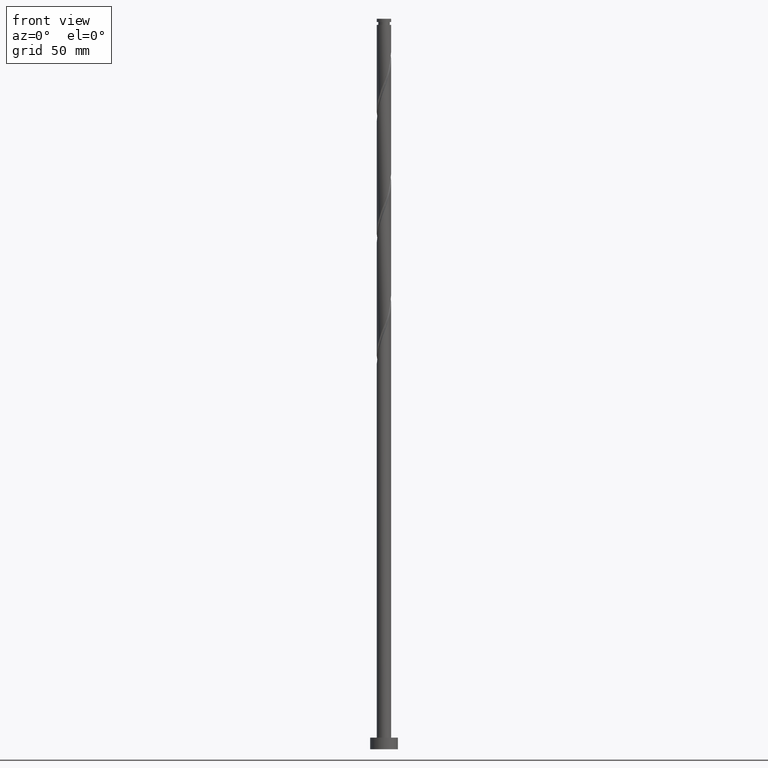
[diagram: clean part render]
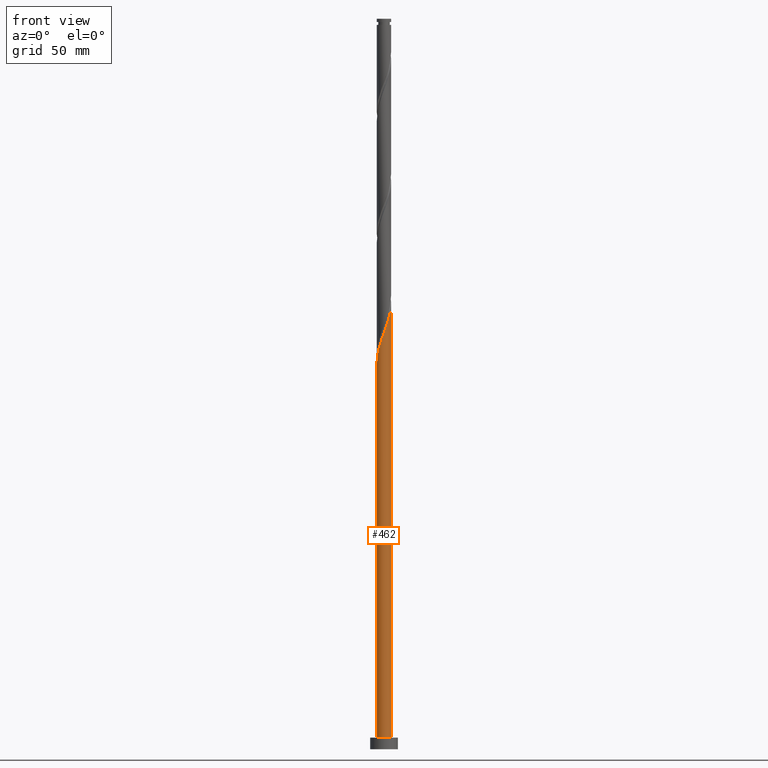
[diagram: same view with one face highlighted and labeled with its STEP entity id]
A machine part, front view. The second image highlights one B-rep face of the part: STEP entity #462.
In plain terms, the highlighted cylindrical surface (edge-blend (fillet) strip) has radius 3.1 mm, axis along (-0, -0, -1).
Its self-contained STEP definition (entity closure, byte-faithful):
#17 = VERTEX_POINT ( 'NONE', #1017 ) ;
#21 = DIRECTION ( 'NONE',  ( 0.000000000000000000, 0.000000000000000000, 1.000000000000000000 ) ) ;
#55 = CARTESIAN_POINT ( 'NONE',  ( -3.100000000000000089, 0.000000000000000000, 5.000000000000000000 ) ) ;
#101 = CARTESIAN_POINT ( 'NONE',  ( 1.873939476407135318, -2.469483921543724758, 184.8643247266692811 ) ) ;
#122 = CARTESIAN_POINT ( 'NONE',  ( 2.759830046146270810, -1.411856266192949461, 188.6143247266692811 ) ) ;
#198 = DIRECTION ( 'NONE',  ( -0.000000000000000000, -0.000000000000000000, -1.000000000000000000 ) ) ;
#201 = CARTESIAN_POINT ( 'NONE',  ( -2.680626191545391723, -1.595695462930749153, 170.8018247266693663 ) ) ;
#216 = CARTESIAN_POINT ( 'NONE',  ( -3.100000000000003642, -2.003785095264853602E-15, 166.3148076487632068 ) ) ;
#225 = CARTESIAN_POINT ( 'NONE',  ( 1.277444032676697150, -2.824559566264928545, 182.9893247266693095 ) ) ;
#229 = AXIS2_PLACEMENT_3D ( 'NONE', #1532, #362, #913 ) ;
#236 = CARTESIAN_POINT ( 'NONE',  ( -1.722814431116908906, -2.600752049917918196, 174.5518247266693095 ) ) ;
#241 = CARTESIAN_POINT ( 'NONE',  ( 1.595695462930749153, -2.680626191545392167, 183.9268247266693663 ) ) ;
#257 = VECTOR ( 'NONE', #909, 1000.000000000000000 ) ;
#362 = DIRECTION ( 'NONE',  ( -0.000000000000000000, -0.000000000000000000, -1.000000000000000000 ) ) ;
#364 = CARTESIAN_POINT ( 'NONE',  ( 0.000000000000000000, 0.000000000000000000, 5.000000000000000000 ) ) ;
#373 = CARTESIAN_POINT ( 'NONE',  ( -0.07459316204187071975, -3.099102428151837785, 179.2393247266692811 ) ) ;
#393 = CARTESIAN_POINT ( 'NONE',  ( 3.004802919831379704, -0.7623381224711505144, 190.4893247266693095 ) ) ;
#403 = CARTESIAN_POINT ( 'NONE',  ( 0.9591926024226449243, -2.968492940984465811, 182.0518247266693379 ) ) ;
#462 = ADVANCED_FACE ( 'NONE', ( #506 ), #1688, .T. ) ;
#471 = EDGE_CURVE ( 'NONE', #827, #1094, #939, .T. ) ;
#474 = CARTESIAN_POINT ( 'NONE',  ( -2.968492940984465811, -0.9591926024226451464, 168.9268247266692811 ) ) ;
#506 = FACE_OUTER_BOUND ( 'NONE', #1355, .T. ) ;
#598 = CARTESIAN_POINT ( 'NONE',  ( -3.100000000000004974, -0.3115617227303559278, 167.1530787277268928 ) ) ;
#693 = ORIENTED_EDGE ( 'NONE', *, *, #471, .T. ) ;
#790 = CARTESIAN_POINT ( 'NONE',  ( 3.090697797288134652, -0.4237781436733112916, 191.4268247266693947 ) ) ;
#792 = DIRECTION ( 'NONE',  ( 1.000000000000000000, 0.000000000000000000, 0.000000000000000000 ) ) ;
#827 = VERTEX_POINT ( 'NONE', #1655 ) ;
#831 = CARTESIAN_POINT ( 'NONE',  ( 3.100000000000004086, 1.559743332999457984E-15, 192.5648076487632068 ) ) ;
#909 = DIRECTION ( 'NONE',  ( -0.000000000000000000, -0.000000000000000000, -1.000000000000000000 ) ) ;
#913 = DIRECTION ( 'NONE',  ( -1.000000000000000000, 0.000000000000000000, 0.000000000000000000 ) ) ;
#939 = LINE ( 'NONE', #1694, #1770 ) ;
#967 = CARTESIAN_POINT ( 'NONE',  ( 3.100000000000004086, -0.03730198121581215775, 192.4644449605381169 ) ) ;
#979 = CARTESIAN_POINT ( 'NONE',  ( 3.099102428151838673, -0.07459316204187098343, 192.3643247266692526 ) ) ;
#1017 = CARTESIAN_POINT ( 'NONE',  ( 3.100000000000000089, 3.796405077356794918E-16, 5.000000000000000000 ) ) ;
#1074 = CARTESIAN_POINT ( 'NONE',  ( 3.100000000000000089, 3.796405077356794918E-16, 315.0000000000000000 ) ) ;
#1094 = VERTEX_POINT ( 'NONE', #55 ) ;
#1109 = CARTESIAN_POINT ( 'NONE',  ( -0.4237781436733111806, -3.090697797288135540, 178.3018247266692811 ) ) ;
#1117 = ORIENTED_EDGE ( 'NONE', *, *, #1837, .T. ) ;
#1122 = ORIENTED_EDGE ( 'NONE', *, *, #1671, .F. ) ;
#1129 = CARTESIAN_POINT ( 'NONE',  ( -1.100898101268990015, -2.918908042374625200, 176.4268247266693095 ) ) ;
#1140 = CARTESIAN_POINT ( 'NONE',  ( 2.376467769900719951, -1.990578041329483794, 186.7393247266692526 ) ) ;
#1157 = ORIENTED_EDGE ( 'NONE', *, *, #1307, .F. ) ;
#1216 = CARTESIAN_POINT ( 'NONE',  ( -3.038000000000003364, -0.6168922110061072495, 167.9893247266692811 ) ) ;
#1267 = CARTESIAN_POINT ( 'NONE',  ( -1.411856266192948794, -2.759830046146270366, 175.4893247266692526 ) ) ;
#1277 = CARTESIAN_POINT ( 'NONE',  ( 2.152183489883522594, -2.258341651542058681, 185.8018247266692811 ) ) ;
#1307 = EDGE_CURVE ( 'NONE', #827, #1739, #1576, .T. ) ;
#1355 = EDGE_LOOP ( 'NONE', ( #1122, #1157, #693, #1117 ) ) ;
#1384 = CARTESIAN_POINT ( 'NONE',  ( -2.469483921543724758, -1.873939476407135318, 171.7393247266693095 ) ) ;
#1443 = CARTESIAN_POINT ( 'NONE',  ( 0.6168922110061071384, -3.038000000000003364, 181.1143247266693095 ) ) ;
#1470 = CIRCLE ( 'NONE', #1703, 3.100000000000000089 ) ;
#1523 = CARTESIAN_POINT ( 'NONE',  ( -2.824559566264928545, -1.277444032676697150, 169.8643247266692811 ) ) ;
#1532 = CARTESIAN_POINT ( 'NONE',  ( 0.000000000000000000, 0.000000000000000000, 315.0000000000000000 ) ) ;
#1576 =( BOUNDED_CURVE ( )  B_SPLINE_CURVE ( 2, ( #216, #598, #1216, #474, #1523, #201, #1384, #1854, #1697, #236, #1267, #1129, #1589, #1109, #373, #1897, #1443, #403, #225, #241, #101, #1277, #1140, #1871, #122, #1718, #393, #790, #979, #967, #1577 ),
 .UNSPECIFIED., .F., .T. ) 
 B_SPLINE_CURVE_WITH_KNOTS ( ( 3, 2, 2, 2, 2, 2, 2, 2, 2, 2, 2, 2, 2, 2, 2, 3 ),
 ( 0.05453034012992202112, 0.06250000000000000000, 0.07142857142857139685, 0.08035714285714290472, 0.08928571428571430157, 0.09821428571428569843, 0.1071428571428570953, 0.1160714285714286031, 0.1250000000000000000, 0.1339285714285713969, 0.1428571428571429047, 0.1517857142857143016, 0.1607142857142856984, 0.1696428571428570953, 0.1785714285714286031, 0.1795303401299220003 ),
 .UNSPECIFIED. ) 
 CURVE ( )  GEOMETRIC_REPRESENTATION_ITEM ( )  RATIONAL_B_SPLINE_CURVE ( ( 0.9079949616362184006, 0.9039886423360812273, 0.9090909090909482515, 0.9033747362666230130, 0.9090909090909482515, 0.9033747362666230130, 0.9090909090909482515, 0.9033747362666230130, 0.9090909090909482515, 0.9033747362666230130, 0.9090909090909482515, 0.9033747362666230130, 0.9090909090909482515, 0.9033747362666230130, 0.9090909090909482515, 0.9033747362666230130, 0.9090909090909482515, 0.9033747362666230130, 0.9090909090909482515, 0.9033747362666230130, 0.9090909090909482515, 0.9033747362666230130, 0.9090909090909482515, 0.9033747362666230130, 0.9090909090909482515, 0.9033747362666230130, 0.9090909090909482515, 0.9033747362666230130, 0.9090909090909482515, 0.9084770030214900371, 0.9079949616362184006 ) ) 
 REPRESENTATION_ITEM ( '' )  );
#1577 = CARTESIAN_POINT ( 'NONE',  ( 3.100000000000004086, 1.559743332999458181E-15, 192.5648076487632068 ) ) ;
#1589 = CARTESIAN_POINT ( 'NONE',  ( -0.7623381224711502924, -3.004802919831379704, 177.3643247266693095 ) ) ;
#1655 = CARTESIAN_POINT ( 'NONE',  ( -3.100000000000003642, -2.003785095264853602E-15, 166.3148076487632068 ) ) ;
#1671 = EDGE_CURVE ( 'NONE', #1739, #17, #1832, .T. ) ;
#1688 = CYLINDRICAL_SURFACE ( 'NONE', #229, 3.100000000000000089 ) ;
#1694 = CARTESIAN_POINT ( 'NONE',  ( -3.100000000000000089, 0.000000000000000000, 315.0000000000000000 ) ) ;
#1697 = CARTESIAN_POINT ( 'NONE',  ( -1.990578041329483794, -2.376467769900719951, 173.6143247266692811 ) ) ;
#1703 = AXIS2_PLACEMENT_3D ( 'NONE', #364, #21, #792 ) ;
#1718 = CARTESIAN_POINT ( 'NONE',  ( 2.918908042374625200, -1.100898101268990015, 189.5518247266692811 ) ) ;
#1739 = VERTEX_POINT ( 'NONE', #831 ) ;
#1770 = VECTOR ( 'NONE', #198, 1000.000000000000000 ) ;
#1832 = LINE ( 'NONE', #1074, #257 ) ;
#1837 = EDGE_CURVE ( 'NONE', #1094, #17, #1470, .T. ) ;
#1854 = CARTESIAN_POINT ( 'NONE',  ( -2.258341651542058681, -2.152183489883522594, 172.6768247266693379 ) ) ;
#1871 = CARTESIAN_POINT ( 'NONE',  ( 2.600752049917918196, -1.722814431116909129, 187.6768247266693095 ) ) ;
#1897 = CARTESIAN_POINT ( 'NONE',  ( 0.2745918195895695191, -3.107507059015540918, 180.1768247266692811 ) ) ;